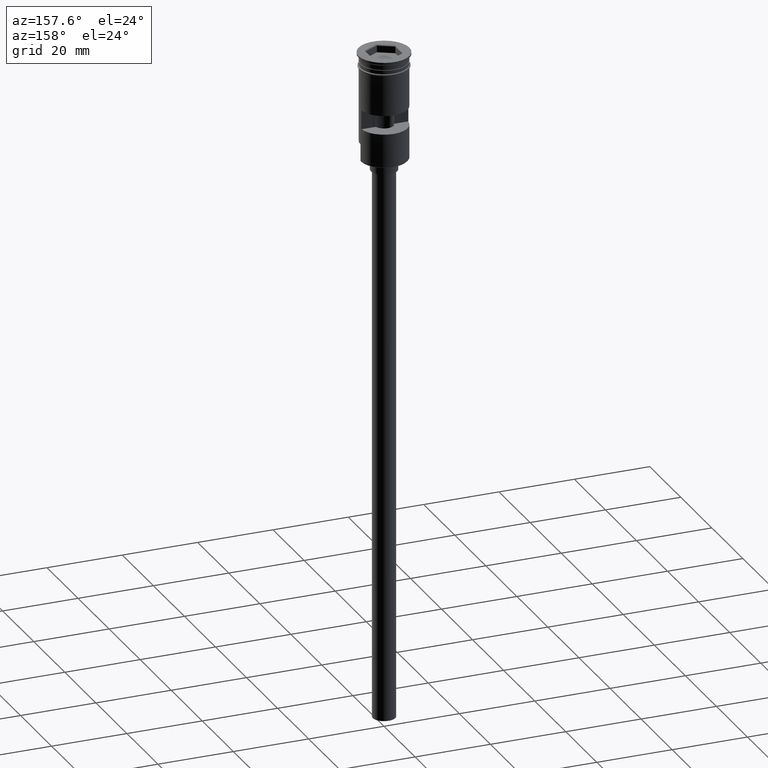
[diagram: clean part render]
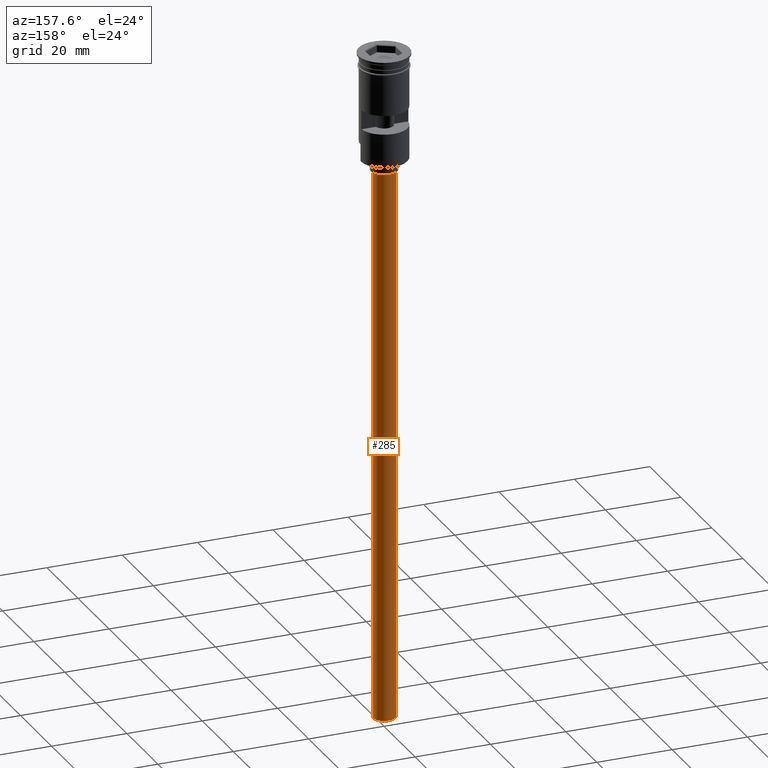
[diagram: same view with one face highlighted and labeled with its STEP entity id]
A machine part, auxiliary view. The second image highlights one B-rep face of the part: STEP entity #285.
In plain terms, the highlighted cylindrical surface (edge-blend (fillet) strip) has radius 3 mm, axis along (-0, -0, 1).
Its self-contained STEP definition (entity closure, byte-faithful):
#48 = EDGE_LOOP ( 'NONE', ( #1537, #929, #104, #490 ) ) ;
#104 = ORIENTED_EDGE ( 'NONE', *, *, #812, .T. ) ;
#109 = DIRECTION ( 'NONE',  ( 1.000000000000000000, 0.000000000000000000, 0.000000000000000000 ) ) ;
#185 = EDGE_CURVE ( 'NONE', #1117, #981, #709, .T. ) ;
#207 = DIRECTION ( 'NONE',  ( -0.000000000000000000, -0.000000000000000000, 1.000000000000000000 ) ) ;
#222 = AXIS2_PLACEMENT_3D ( 'NONE', #228, #1212, #109 ) ;
#228 = CARTESIAN_POINT ( 'NONE',  ( 0.000000000000000000, 0.000000000000000000, -178.5000000000000000 ) ) ;
#285 = ADVANCED_FACE ( 'NONE', ( #1334 ), #598, .T. ) ;
#326 = VECTOR ( 'NONE', #207, 1000.000000000000000 ) ;
#361 = DIRECTION ( 'NONE',  ( 0.000000000000000000, 0.000000000000000000, -1.000000000000000000 ) ) ;
#366 = CARTESIAN_POINT ( 'NONE',  ( -3.000000000000000444, 3.673940397442060361E-16, -31.50000000000000000 ) ) ;
#383 = CARTESIAN_POINT ( 'NONE',  ( 0.000000000000000000, 0.000000000000000000, -31.50000000000000000 ) ) ;
#483 = CARTESIAN_POINT ( 'NONE',  ( 3.000000000000000444, 0.000000000000000000, -31.50000000000000000 ) ) ;
#487 = CARTESIAN_POINT ( 'NONE',  ( -3.000000000000000444, 3.673940397442060361E-16, -178.5000000000000000 ) ) ;
#490 = ORIENTED_EDGE ( 'NONE', *, *, #954, .F. ) ;
#598 = CYLINDRICAL_SURFACE ( 'NONE', #222, 3.000000000000000444 ) ;
#669 = VERTEX_POINT ( 'NONE', #483 ) ;
#709 = CIRCLE ( 'NONE', #790, 3.000000000000000444 ) ;
#711 = EDGE_CURVE ( 'NONE', #1117, #1174, #1191, .T. ) ;
#790 = AXIS2_PLACEMENT_3D ( 'NONE', #1453, #361, #1204 ) ;
#812 = EDGE_CURVE ( 'NONE', #1174, #669, #892, .T. ) ;
#892 = CIRCLE ( 'NONE', #1157, 3.000000000000000444 ) ;
#929 = ORIENTED_EDGE ( 'NONE', *, *, #711, .T. ) ;
#954 = EDGE_CURVE ( 'NONE', #981, #669, #1051, .T. ) ;
#981 = VERTEX_POINT ( 'NONE', #1265 ) ;
#982 = DIRECTION ( 'NONE',  ( 0.000000000000000000, 0.000000000000000000, -1.000000000000000000 ) ) ;
#1051 = LINE ( 'NONE', #1153, #1129 ) ;
#1117 = VERTEX_POINT ( 'NONE', #487 ) ;
#1129 = VECTOR ( 'NONE', #1549, 1000.000000000000000 ) ;
#1153 = CARTESIAN_POINT ( 'NONE',  ( 3.000000000000000444, 0.000000000000000000, -178.5000000000000000 ) ) ;
#1157 = AXIS2_PLACEMENT_3D ( 'NONE', #383, #982, #1353 ) ;
#1174 = VERTEX_POINT ( 'NONE', #366 ) ;
#1191 = LINE ( 'NONE', #1197, #326 ) ;
#1197 = CARTESIAN_POINT ( 'NONE',  ( -3.000000000000000444, 3.673940397442060361E-16, -178.5000000000000000 ) ) ;
#1204 = DIRECTION ( 'NONE',  ( -1.000000000000000000, 0.000000000000000000, 0.000000000000000000 ) ) ;
#1212 = DIRECTION ( 'NONE',  ( -0.000000000000000000, -0.000000000000000000, 1.000000000000000000 ) ) ;
#1265 = CARTESIAN_POINT ( 'NONE',  ( 3.000000000000000444, 0.000000000000000000, -178.5000000000000000 ) ) ;
#1334 = FACE_OUTER_BOUND ( 'NONE', #48, .T. ) ;
#1353 = DIRECTION ( 'NONE',  ( -1.000000000000000000, 0.000000000000000000, 0.000000000000000000 ) ) ;
#1453 = CARTESIAN_POINT ( 'NONE',  ( 0.000000000000000000, 0.000000000000000000, -178.5000000000000000 ) ) ;
#1537 = ORIENTED_EDGE ( 'NONE', *, *, #185, .F. ) ;
#1549 = DIRECTION ( 'NONE',  ( -0.000000000000000000, -0.000000000000000000, 1.000000000000000000 ) ) ;